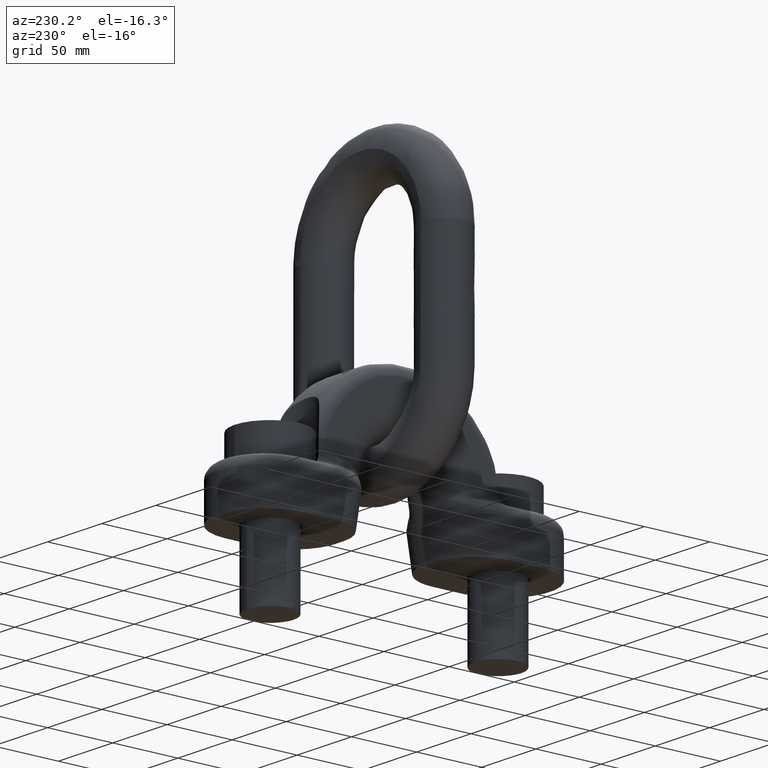
[diagram: clean part render]
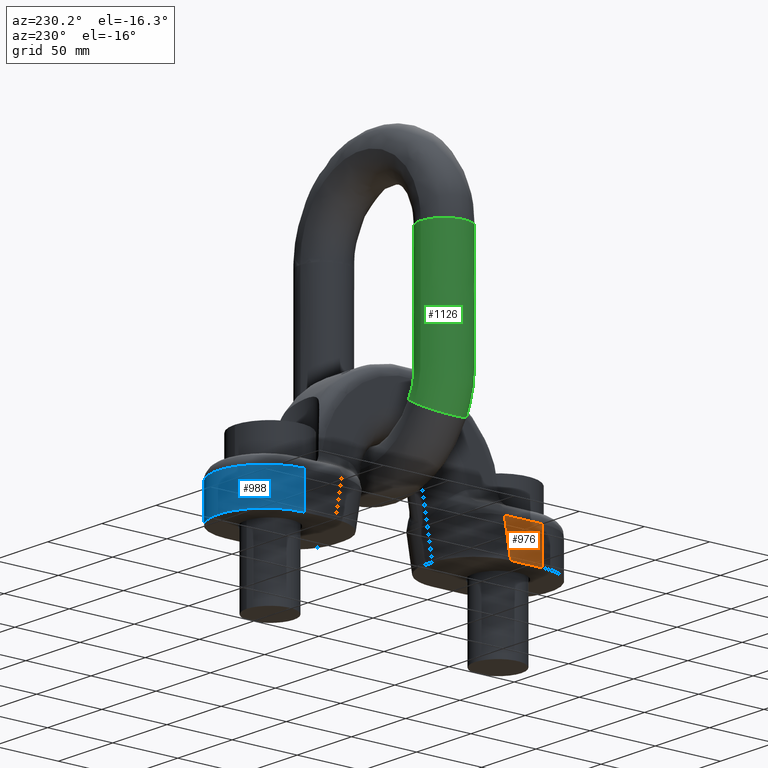
[diagram: same view with three faces highlighted in distinct colors, each labeled with its STEP entity id]
A machine part, auxiliary view with three faces highlighted in distinct colors.
Their STEP definitions:

[orange] entity #976 — the highlighted planar face has unit normal (1, 0, 0).
#744=PLANE('',#3555);
#832=FACE_OUTER_BOUND('',#1531,.T.);
#976=ADVANCED_FACE('',(#832),#744,.F.);
#1183=LINE('',#5118,#1309);
#1184=LINE('',#5121,#1310);
#1185=LINE('',#5123,#1311);
#1186=LINE('',#5125,#1312);
#1309=VECTOR('',#3810,1.);
#1310=VECTOR('',#3811,1.);
#1311=VECTOR('',#3812,1.);
#1312=VECTOR('',#3813,1.);
#1531=EDGE_LOOP('',(#2129,#2130,#2131,#2132));
#2129=ORIENTED_EDGE('',*,*,#3193,.F.);
#2130=ORIENTED_EDGE('',*,*,#3194,.T.);
#2131=ORIENTED_EDGE('',*,*,#3195,.T.);
#2132=ORIENTED_EDGE('',*,*,#3196,.T.);
#2919=VERTEX_POINT('',#5119);
#2920=VERTEX_POINT('',#5120);
#2921=VERTEX_POINT('',#5122);
#2922=VERTEX_POINT('',#5124);
#3193=EDGE_CURVE('',#2919,#2920,#1183,.T.);
#3194=EDGE_CURVE('',#2919,#2921,#1184,.T.);
#3195=EDGE_CURVE('',#2921,#2922,#1185,.T.);
#3196=EDGE_CURVE('',#2922,#2920,#1186,.T.);
#3555=AXIS2_PLACEMENT_3D('',#5126,#3814,#3815);
#3810=DIRECTION('',(0.,0.,-1.));
#3811=DIRECTION('',(-1.51669812107262E-16,1.,-4.04207411878091E-16));
#3812=DIRECTION('',(2.63371864795117E-17,-0.17364817766693,-0.984807753012208));
#3813=DIRECTION('',(1.51669812107262E-16,-1.,0.));
#3814=DIRECTION('',(1.,1.51669812107262E-16,0.));
#3815=DIRECTION('',(-1.52655665885959E-16,1.,0.));
#5118=CARTESIAN_POINT('',(-36.,-91.5,226.));
#5119=CARTESIAN_POINT('',(-36.,-91.5,27.));
#5120=CARTESIAN_POINT('',(-36.,-91.5,0.));
#5121=CARTESIAN_POINT('',(-36.,91.4999999999999,26.9999999999999));
#5122=CARTESIAN_POINT('',(-36.,-62.4322645145148,27.));
#5123=CARTESIAN_POINT('',(-36.,-66.2010419661408,5.62620095640852));
#5124=CARTESIAN_POINT('',(-36.,-67.1930929936434,0.));
#5125=CARTESIAN_POINT('',(-36.,91.5,0.));
#5126=CARTESIAN_POINT('',(-36.,91.5,226.));

[blue] entity #988 — the highlighted cylindrical surface (partial cylindrical patch) has radius 36 mm, axis along (0, 0, -1).
#841=FACE_OUTER_BOUND('',#1546,.T.);
#988=ADVANCED_FACE('',(#841),#1142,.T.);
#1142=CYLINDRICAL_SURFACE('',#3593,36.);
#1181=LINE('',#5114,#1307);
#1195=LINE('',#5159,#1321);
#1307=VECTOR('',#3806,1.);
#1321=VECTOR('',#3848,1.);
#1546=EDGE_LOOP('',(#2194,#2195,#2196,#2197));
#1976=CIRCLE('',#3591,36.);
#1977=CIRCLE('',#3592,36.);
#2194=ORIENTED_EDGE('',*,*,#3191,.F.);
#2195=ORIENTED_EDGE('',*,*,#3244,.T.);
#2196=ORIENTED_EDGE('',*,*,#3213,.T.);
#2197=ORIENTED_EDGE('',*,*,#3245,.T.);
#2917=VERTEX_POINT('',#5113);
#2918=VERTEX_POINT('',#5115);
#2935=VERTEX_POINT('',#5160);
#2936=VERTEX_POINT('',#5161);
#3191=EDGE_CURVE('',#2917,#2918,#1181,.T.);
#3213=EDGE_CURVE('',#2935,#2936,#1195,.T.);
#3244=EDGE_CURVE('',#2917,#2935,#1976,.T.);
#3245=EDGE_CURVE('',#2936,#2918,#1977,.T.);
#3591=AXIS2_PLACEMENT_3D('',#5226,#3907,#3908);
#3592=AXIS2_PLACEMENT_3D('',#5227,#3909,#3910);
#3593=AXIS2_PLACEMENT_3D('',#5228,#3911,#3912);
#3806=DIRECTION('',(0.,0.,-1.));
#3848=DIRECTION('',(0.,0.,-1.));
#3907=DIRECTION('',(0.,4.04207411878091E-16,-1.));
#3908=DIRECTION('',(0.,1.,3.85494105772624E-16));
#3909=DIRECTION('',(0.,0.,1.));
#3910=DIRECTION('',(6.12323399573677E-17,1.,0.));
#3911=DIRECTION('',(0.,0.,-1.));
#3912=DIRECTION('',(-1.,0.,0.));
#5113=CARTESIAN_POINT('',(-36.,91.5,27.));
#5114=CARTESIAN_POINT('',(-36.,91.5,226.));
#5115=CARTESIAN_POINT('',(-36.,91.5,0.));
#5159=CARTESIAN_POINT('',(36.,91.5,226.));
#5160=CARTESIAN_POINT('',(36.,91.5,27.));
#5161=CARTESIAN_POINT('',(36.,91.5,0.));
#5226=CARTESIAN_POINT('',(0.,91.5,27.));
#5227=CARTESIAN_POINT('',(0.,91.5,0.));
#5228=CARTESIAN_POINT('',(0.,91.5,226.));

[green] entity #1126 — the highlighted face is a freeform B-spline surface patch.
#33=(
BOUNDED_CURVE()
B_SPLINE_CURVE(4,(#7147,#7148,#7149,#7150,#7151,#7152,#7153,#7154,#7155,
#7156,#7157,#7158,#7159,#7160),.UNSPECIFIED.,.T.,.F.)
B_SPLINE_CURVE_WITH_KNOTS((2,3,3,3,3,3,2),(-0.25,0.,0.25,0.5,0.75,1.,1.25),
 .UNSPECIFIED.)
CURVE()
GEOMETRIC_REPRESENTATION_ITEM()
RATIONAL_B_SPLINE_CURVE((1.0166117137858,1.0166117137858,0.958470715535492,
1.0166117137858,1.0166117137858,0.958470715535492,1.0166117137858,1.0166117137858,
0.958470715535492,1.0166117137858,1.0166117137858,0.958470715535492,1.0166117137858,
1.0166117137858))
REPRESENTATION_ITEM('')
);
#34=(
BOUNDED_CURVE()
B_SPLINE_CURVE(4,(#7316,#7317,#7318,#7319,#7320,#7321,#7322,#7323,#7324,
#7325,#7326,#7327,#7328,#7329),.UNSPECIFIED.,.T.,.F.)
B_SPLINE_CURVE_WITH_KNOTS((2,3,3,3,3,3,2),(-0.25,0.,0.25,0.5,0.75,1.,1.25),
 .UNSPECIFIED.)
CURVE()
GEOMETRIC_REPRESENTATION_ITEM()
RATIONAL_B_SPLINE_CURVE((1.0166117137858,1.0166117137858,0.958470715535492,
1.0166117137858,1.0166117137858,0.958470715535492,1.0166117137858,1.0166117137858,
0.958470715535492,1.0166117137858,1.0166117137858,0.958470715535492,1.0166117137858,
1.0166117137858))
REPRESENTATION_ITEM('')
);
#818=(
BOUNDED_SURFACE()
B_SPLINE_SURFACE(4,3,((#7653,#7654,#7655,#7656,#7657,#7658,#7659,#7660,
#7661,#7662,#7663,#7664,#7665,#7666),(#7667,#7668,#7669,#7670,#7671,#7672,
#7673,#7674,#7675,#7676,#7677,#7678,#7679,#7680),(#7681,#7682,#7683,#7684,
#7685,#7686,#7687,#7688,#7689,#7690,#7691,#7692,#7693,#7694),(#7695,#7696,
#7697,#7698,#7699,#7700,#7701,#7702,#7703,#7704,#7705,#7706,#7707,#7708),
(#7709,#7710,#7711,#7712,#7713,#7714,#7715,#7716,#7717,#7718,#7719,#7720,
#7721,#7722),(#7723,#7724,#7725,#7726,#7727,#7728,#7729,#7730,#7731,#7732,
#7733,#7734,#7735,#7736),(#7737,#7738,#7739,#7740,#7741,#7742,#7743,#7744,
#7745,#7746,#7747,#7748,#7749,#7750),(#7751,#7752,#7753,#7754,#7755,#7756,
#7757,#7758,#7759,#7760,#7761,#7762,#7763,#7764),(#7765,#7766,#7767,#7768,
#7769,#7770,#7771,#7772,#7773,#7774,#7775,#7776,#7777,#7778),(#7779,#7780,
#7781,#7782,#7783,#7784,#7785,#7786,#7787,#7788,#7789,#7790,#7791,#7792),
(#7793,#7794,#7795,#7796,#7797,#7798,#7799,#7800,#7801,#7802,#7803,#7804,
#7805,#7806),(#7807,#7808,#7809,#7810,#7811,#7812,#7813,#7814,#7815,#7816,
#7817,#7818,#7819,#7820),(#7821,#7822,#7823,#7824,#7825,#7826,#7827,#7828,
#7829,#7830,#7831,#7832,#7833,#7834),(#7835,#7836,#7837,#7838,#7839,#7840,
#7841,#7842,#7843,#7844,#7845,#7846,#7847,#7848)),.UNSPECIFIED.,.T.,.F.,
 .F.)
B_SPLINE_SURFACE_WITH_KNOTS((2,3,3,3,3,3,2),(4,1,1,1,1,1,1,1,1,1,1,4),(-0.25,
0.,0.25,0.5,0.75,1.,1.25),(0.,0.0294579994630743,0.0598312635837769,0.121094131718347,
0.501952614251677,0.666044283327456,0.693362459308782,0.703037312407282,
0.715116832343048,0.765492315786816,0.924036142002628,1.),.UNSPECIFIED.)
GEOMETRIC_REPRESENTATION_ITEM()
RATIONAL_B_SPLINE_SURFACE(((1.0166117137858,1.0166117137858,1.0166117137858,
1.0166117137858,1.01661171378581,1.0166117137858,1.0166117137858,1.0166117137858,
1.0166117137858,1.0166117137858,1.0166117137858,1.0166117137858,1.0166117137858,
1.0166117137858),(1.0166117137858,1.0166117137858,1.0166117137858,1.0166117137858,
1.01661171378581,1.0166117137858,1.0166117137858,1.0166117137858,1.0166117137858,
1.0166117137858,1.0166117137858,1.0166117137858,1.0166117137858,1.0166117137858),
(0.958470715535492,0.958470715535492,0.958470715535492,0.958470715535493,
0.95847071553549,0.958470715535494,0.958470715535492,0.958470715535492,
0.958470715535493,0.958470715535491,0.958470715535494,0.958470715535492,
0.958470715535491,0.958470715535492),(1.0166117137858,1.0166117137858,1.0166117137858,
1.0166117137858,1.01661171378581,1.0166117137858,1.0166117137858,1.0166117137858,
1.0166117137858,1.0166117137858,1.0166117137858,1.0166117137858,1.0166117137858,
1.0166117137858),(1.0166117137858,1.0166117137858,1.0166117137858,1.0166117137858,
1.01661171378581,1.0166117137858,1.0166117137858,1.0166117137858,1.0166117137858,
1.0166117137858,1.0166117137858,1.0166117137858,1.0166117137858,1.0166117137858),
(0.958470715535492,0.958470715535492,0.958470715535492,0.958470715535493,
0.95847071553549,0.958470715535494,0.958470715535492,0.958470715535492,
0.958470715535493,0.958470715535491,0.958470715535494,0.958470715535492,
0.958470715535491,0.958470715535492),(1.0166117137858,1.0166117137858,1.0166117137858,
1.0166117137858,1.01661171378581,1.0166117137858,1.0166117137858,1.0166117137858,
1.0166117137858,1.0166117137858,1.0166117137858,1.0166117137858,1.0166117137858,
1.0166117137858),(1.0166117137858,1.0166117137858,1.0166117137858,1.0166117137858,
1.01661171378581,1.0166117137858,1.0166117137858,1.0166117137858,1.0166117137858,
1.0166117137858,1.0166117137858,1.0166117137858,1.0166117137858,1.0166117137858),
(0.958470715535492,0.958470715535492,0.958470715535492,0.958470715535493,
0.95847071553549,0.958470715535494,0.958470715535492,0.958470715535492,
0.958470715535493,0.958470715535491,0.958470715535494,0.958470715535492,
0.958470715535491,0.958470715535492),(1.0166117137858,1.0166117137858,1.0166117137858,
1.0166117137858,1.01661171378581,1.0166117137858,1.0166117137858,1.0166117137858,
1.0166117137858,1.0166117137858,1.0166117137858,1.0166117137858,1.0166117137858,
1.0166117137858),(1.0166117137858,1.0166117137858,1.0166117137858,1.0166117137858,
1.01661171378581,1.0166117137858,1.0166117137858,1.0166117137858,1.0166117137858,
1.0166117137858,1.0166117137858,1.0166117137858,1.0166117137858,1.0166117137858),
(0.958470715535492,0.958470715535492,0.958470715535492,0.958470715535493,
0.95847071553549,0.958470715535494,0.958470715535492,0.958470715535492,
0.958470715535493,0.958470715535491,0.958470715535494,0.958470715535492,
0.958470715535491,0.958470715535492),(1.0166117137858,1.0166117137858,1.0166117137858,
1.0166117137858,1.01661171378581,1.0166117137858,1.0166117137858,1.0166117137858,
1.0166117137858,1.0166117137858,1.0166117137858,1.0166117137858,1.0166117137858,
1.0166117137858),(1.0166117137858,1.0166117137858,1.0166117137858,1.0166117137858,
1.01661171378581,1.0166117137858,1.0166117137858,1.0166117137858,1.0166117137858,
1.0166117137858,1.0166117137858,1.0166117137858,1.0166117137858,1.0166117137858)))
REPRESENTATION_ITEM('')
SURFACE()
);
#1126=ADVANCED_FACE('',(#1508,#1509),#818,.F.);
#1508=FACE_BOUND('',#1697,.T.);
#1509=FACE_BOUND('',#1698,.T.);
#1697=EDGE_LOOP('',(#2803));
#1698=EDGE_LOOP('',(#2804));
#2803=ORIENTED_EDGE('',*,*,#3481,.F.);
#2804=ORIENTED_EDGE('',*,*,#3480,.F.);
#3076=VERTEX_POINT('',#7161);
#3077=VERTEX_POINT('',#7330);
#3480=EDGE_CURVE('',#3076,#3076,#33,.T.);
#3481=EDGE_CURVE('',#3077,#3077,#34,.T.);
#7147=CARTESIAN_POINT('',(-54.9645875436099,18.,75.1060692174956));
#7148=CARTESIAN_POINT('',(-43.6561460094053,18.,80.948512322601));
#7149=CARTESIAN_POINT('',(-36.1449257730834,14.8180194846606,84.8291422704054));
#7150=CARTESIAN_POINT('',(-33.3178153895322,6.36396103067893,86.2897530466816));
#7151=CARTESIAN_POINT('',(-33.3178153895322,-6.36396103067893,86.2897530466816));
#7152=CARTESIAN_POINT('',(-36.1449257730834,-14.8180194846606,84.8291422704054));
#7153=CARTESIAN_POINT('',(-43.6561460094053,-18.,80.948512322601));
#7154=CARTESIAN_POINT('',(-54.9645875436099,-18.,75.1060692174956));
#7155=CARTESIAN_POINT('',(-62.475807779932,-14.8180194846606,71.2254392696913));
#7156=CARTESIAN_POINT('',(-65.3029181634831,-6.36396103067893,69.7648284934149));
#7157=CARTESIAN_POINT('',(-65.3029181634831,6.36396103067893,69.7648284934149));
#7158=CARTESIAN_POINT('',(-62.475807779932,14.8180194846606,71.2254392696913));
#7159=CARTESIAN_POINT('',(-54.9645875436099,18.,75.1060692174956));
#7160=CARTESIAN_POINT('',(-43.6561460094053,18.,80.948512322601));
#7161=CARTESIAN_POINT('',(-49.3103667765076,18.,78.0272907700483));
#7316=CARTESIAN_POINT('',(-49.1360801568512,18.,188.499461932894));
#7317=CARTESIAN_POINT('',(-61.8640128871942,18.,188.500620762991));
#7318=CARTESIAN_POINT('',(-70.3180784276605,14.8180194846605,188.501390473658));
#7319=CARTESIAN_POINT('',(-73.5000616102463,6.36396103067894,188.501680181182));
#7320=CARTESIAN_POINT('',(-73.5000616102463,-6.36396103067892,188.501680181182));
#7321=CARTESIAN_POINT('',(-70.3180784276605,-14.8180194846605,188.501390473658));
#7322=CARTESIAN_POINT('',(-61.8640128871942,-18.,188.500620762991));
#7323=CARTESIAN_POINT('',(-49.1360801568512,-18.,188.499461932894));
#7324=CARTESIAN_POINT('',(-40.6820146163849,-14.8180194846606,188.498692222227));
#7325=CARTESIAN_POINT('',(-37.5000314337991,-6.36396103067894,188.498402514703));
#7326=CARTESIAN_POINT('',(-37.5000314337991,6.36396103067892,188.498402514703));
#7327=CARTESIAN_POINT('',(-40.6820146163849,14.8180194846605,188.498692222227));
#7328=CARTESIAN_POINT('',(-49.1360801568512,18.,188.499461932894));
#7329=CARTESIAN_POINT('',(-61.8640128871942,18.,188.500620762991));
#7330=CARTESIAN_POINT('',(-55.5000465220227,18.,188.500041347943));
#7653=CARTESIAN_POINT('',(-49.1360801568512,18.,188.499461932894));
#7654=CARTESIAN_POINT('',(-49.1505839658783,18.,187.158535537742));
#7655=CARTESIAN_POINT('',(-49.130391686812,18.,184.371743747516));
#7656=CARTESIAN_POINT('',(-49.137635986376,18.0000000000001,179.029208807226));
#7657=CARTESIAN_POINT('',(-49.1349362263087,17.9999999999999,158.102515115602));
#7658=CARTESIAN_POINT('',(-49.1363532864231,18.,133.937383217414));
#7659=CARTESIAN_POINT('',(-49.136147826044,18.,111.966562273466));
#7660=CARTESIAN_POINT('',(-49.1355786584066,18.,105.300958317876));
#7661=CARTESIAN_POINT('',(-49.1373370035106,18.,103.539304194526));
#7662=CARTESIAN_POINT('',(-49.1223034887103,18.,101.427638698207));
#7663=CARTESIAN_POINT('',(-48.7018592065755,18.0000000000001,95.0569435426681));
#7664=CARTESIAN_POINT('',(-46.8281400966228,18.,87.7869903322047));
#7665=CARTESIAN_POINT('',(-44.4880355700716,18.,82.5630369933892));
#7666=CARTESIAN_POINT('',(-43.6561460094053,18.,80.948512322601));
#7667=CARTESIAN_POINT('',(-61.8640128871942,18.,188.500620762991));
#7668=CARTESIAN_POINT('',(-61.8822736810082,18.,186.975728769163));
#7669=CARTESIAN_POINT('',(-61.8568509079992,18.,184.443822097385));
#7670=CARTESIAN_POINT('',(-61.8659717300133,18.0000000000001,179.005321269819));
#7671=CARTESIAN_POINT('',(-61.8625726393442,17.9999999999999,158.127013183372));
#7672=CARTESIAN_POINT('',(-61.8643567667078,18.0000000000001,133.916244392247));
#7673=CARTESIAN_POINT('',(-61.8640980850328,18.,111.977902811347));
#7674=CARTESIAN_POINT('',(-61.8633814834244,18.,105.288693486067));
#7675=CARTESIAN_POINT('',(-61.865595300315,18.,103.574641358263));
#7676=CARTESIAN_POINT('',(-61.8466675887355,18.,100.884676453241));
#7677=CARTESIAN_POINT('',(-61.3173137940229,18.,92.8737482713205));
#7678=CARTESIAN_POINT('',(-58.9582370667977,18.,83.7166461216596));
#7679=CARTESIAN_POINT('',(-56.0119650783563,18.,77.1388554826562));
#7680=CARTESIAN_POINT('',(-54.9645875436099,18.,75.1060692174956));
#7681=CARTESIAN_POINT('',(-70.3180784276605,14.8180194846605,188.501390473658));
#7682=CARTESIAN_POINT('',(-70.3388346617235,14.8180194846605,186.854306034179));
#7683=CARTESIAN_POINT('',(-70.3099377237,14.8180194846606,184.491697514921));
#7684=CARTESIAN_POINT('',(-70.3203049573751,14.8180194846605,178.989454843501));
#7685=CARTESIAN_POINT('',(-70.3164413618361,14.8180194846606,158.143285132237));
#7686=CARTESIAN_POINT('',(-70.318469300245,14.8180194846605,133.902203697878));
#7687=CARTESIAN_POINT('',(-70.3181752682631,14.8180194846606,111.985435350412));
#7688=CARTESIAN_POINT('',(-70.3173607390121,14.8180194846606,105.280547018439));
#7689=CARTESIAN_POINT('',(-70.3198770864401,14.8180194846605,103.598112781673));
#7690=CARTESIAN_POINT('',(-70.2983627965458,14.8180194846606,100.524033566278));
#7691=CARTESIAN_POINT('',(-69.696669826507,14.8180194846605,91.4236403627828));
#7692=CARTESIAN_POINT('',(-67.0152119872888,14.8180194846606,81.0130682934886));
#7693=CARTESIAN_POINT('',(-63.6663153495906,14.8180194846606,73.5360405584539));
#7694=CARTESIAN_POINT('',(-62.475807779932,14.8180194846606,71.2254392696913));
#7695=CARTESIAN_POINT('',(-73.5000616102463,6.36396103067894,188.501680181182));
#7696=CARTESIAN_POINT('',(-73.5217570905059,6.36396103067894,186.808604342034));
#7697=CARTESIAN_POINT('',(-73.4915525289966,6.36396103067893,184.509717102388));
#7698=CARTESIAN_POINT('',(-73.5023888932848,6.36396103067894,178.98348295915));
#7699=CARTESIAN_POINT('',(-73.4983504650944,6.36396103067895,158.149409649179));
#7700=CARTESIAN_POINT('',(-73.5004701703164,6.36396103067895,133.896918991587));
#7701=CARTESIAN_POINT('',(-73.5001628330102,6.36396103067896,111.988270484882));
#7702=CARTESIAN_POINT('',(-73.4993114452666,6.36396103067894,105.277480810486));
#7703=CARTESIAN_POINT('',(-73.5019416606412,6.36396103067894,103.606947072607));
#7704=CARTESIAN_POINT('',(-73.4794538215521,6.36396103067893,100.388293005037));
#7705=CARTESIAN_POINT('',(-72.850533473369,6.36396103067892,90.8778415449461));
#7706=CARTESIAN_POINT('',(-70.0477362298325,6.36396103067893,79.9954822408522));
#7707=CARTESIAN_POINT('',(-66.5472977266618,6.36396103067893,72.1799951807705));
#7708=CARTESIAN_POINT('',(-65.3029181634831,6.36396103067893,69.7648284934149));
#7709=CARTESIAN_POINT('',(-73.5000616102463,-6.36396103067892,188.501680181182));
#7710=CARTESIAN_POINT('',(-73.5217570905059,-6.36396103067892,186.808604342034));
#7711=CARTESIAN_POINT('',(-73.4915525289966,-6.36396103067892,184.509717102388));
#7712=CARTESIAN_POINT('',(-73.5023888932849,-6.36396103067892,178.98348295915));
#7713=CARTESIAN_POINT('',(-73.4983504650943,-6.36396103067892,158.149409649179));
#7714=CARTESIAN_POINT('',(-73.5004701703167,-6.36396103067888,133.896918991587));
#7715=CARTESIAN_POINT('',(-73.5001628330101,-6.36396103067892,111.988270484882));
#7716=CARTESIAN_POINT('',(-73.4993114452667,-6.3639610306789,105.277480810486));
#7717=CARTESIAN_POINT('',(-73.5019416606412,-6.36396103067892,103.606947072607));
#7718=CARTESIAN_POINT('',(-73.4794538215521,-6.36396103067893,100.388293005037));
#7719=CARTESIAN_POINT('',(-72.850533473369,-6.36396103067892,90.8778415449462));
#7720=CARTESIAN_POINT('',(-70.0477362298325,-6.36396103067893,79.9954822408522));
#7721=CARTESIAN_POINT('',(-66.5472977266618,-6.36396103067893,72.1799951807705));
#7722=CARTESIAN_POINT('',(-65.3029181634831,-6.36396103067893,69.7648284934149));
#7723=CARTESIAN_POINT('',(-70.3180784276605,-14.8180194846605,188.501390473658));
#7724=CARTESIAN_POINT('',(-70.3388346617235,-14.8180194846605,186.854306034179));
#7725=CARTESIAN_POINT('',(-70.3099377237,-14.8180194846606,184.491697514921));
#7726=CARTESIAN_POINT('',(-70.3203049573751,-14.8180194846605,178.989454843501));
#7727=CARTESIAN_POINT('',(-70.3164413618362,-14.8180194846606,158.143285132237));
#7728=CARTESIAN_POINT('',(-70.3184693002449,-14.8180194846604,133.902203697878));
#7729=CARTESIAN_POINT('',(-70.3181752682632,-14.8180194846605,111.985435350412));
#7730=CARTESIAN_POINT('',(-70.3173607390122,-14.8180194846605,105.280547018439));
#7731=CARTESIAN_POINT('',(-70.3198770864402,-14.8180194846605,103.598112781673));
#7732=CARTESIAN_POINT('',(-70.2983627965458,-14.8180194846605,100.524033566279));
#7733=CARTESIAN_POINT('',(-69.6966698265072,-14.8180194846605,91.4236403627828));
#7734=CARTESIAN_POINT('',(-67.0152119872888,-14.8180194846606,81.0130682934886));
#7735=CARTESIAN_POINT('',(-63.6663153495906,-14.8180194846606,73.5360405584539));
#7736=CARTESIAN_POINT('',(-62.475807779932,-14.8180194846606,71.2254392696913));
#7737=CARTESIAN_POINT('',(-61.8640128871942,-18.,188.500620762991));
#7738=CARTESIAN_POINT('',(-61.8822736810082,-18.,186.975728769163));
#7739=CARTESIAN_POINT('',(-61.8568509079992,-18.,184.443822097385));
#7740=CARTESIAN_POINT('',(-61.8659717300133,-18.0000000000001,179.005321269819));
#7741=CARTESIAN_POINT('',(-61.8625726393442,-17.9999999999999,158.127013183372));
#7742=CARTESIAN_POINT('',(-61.8643567667079,-18.,133.916244392247));
#7743=CARTESIAN_POINT('',(-61.8640980850328,-18.,111.977902811347));
#7744=CARTESIAN_POINT('',(-61.8633814834245,-18.,105.288693486067));
#7745=CARTESIAN_POINT('',(-61.865595300315,-18.,103.574641358263));
#7746=CARTESIAN_POINT('',(-61.8466675887355,-18.,100.884676453241));
#7747=CARTESIAN_POINT('',(-61.3173137940229,-18.0000000000001,92.8737482713205));
#7748=CARTESIAN_POINT('',(-58.9582370667977,-18.,83.7166461216596));
#7749=CARTESIAN_POINT('',(-56.0119650783563,-18.,77.1388554826562));
#7750=CARTESIAN_POINT('',(-54.9645875436099,-18.,75.1060692174956));
#7751=CARTESIAN_POINT('',(-49.1360801568512,-18.,188.499461932894));
#7752=CARTESIAN_POINT('',(-49.1505839658783,-18.,187.158535537742));
#7753=CARTESIAN_POINT('',(-49.130391686812,-18.,184.371743747516));
#7754=CARTESIAN_POINT('',(-49.137635986376,-18.0000000000001,179.029208807226));
#7755=CARTESIAN_POINT('',(-49.1349362263087,-17.9999999999999,158.102515115602));
#7756=CARTESIAN_POINT('',(-49.1363532864232,-18.0000000000001,133.937383217414));
#7757=CARTESIAN_POINT('',(-49.136147826044,-18.,111.966562273466));
#7758=CARTESIAN_POINT('',(-49.1355786584066,-18.,105.300958317876));
#7759=CARTESIAN_POINT('',(-49.1373370035106,-18.,103.539304194526));
#7760=CARTESIAN_POINT('',(-49.1223034887103,-18.,101.427638698207));
#7761=CARTESIAN_POINT('',(-48.7018592065754,-18.,95.056943542668));
#7762=CARTESIAN_POINT('',(-46.8281400966228,-18.,87.7869903322047));
#7763=CARTESIAN_POINT('',(-44.4880355700716,-18.,82.5630369933892));
#7764=CARTESIAN_POINT('',(-43.6561460094053,-18.,80.948512322601));
#7765=CARTESIAN_POINT('',(-40.6820146163849,-14.8180194846606,188.498692222227));
#7766=CARTESIAN_POINT('',(-40.6940229851631,-14.8180194846606,187.279958272726));
#7767=CARTESIAN_POINT('',(-40.6773048711114,-14.8180194846606,184.32386832998));
#7768=CARTESIAN_POINT('',(-40.6833027590138,-14.8180194846605,179.045075233544));
#7769=CARTESIAN_POINT('',(-40.6810675038172,-14.8180194846606,158.086243166738));
#7770=CARTESIAN_POINT('',(-40.682240752886,-14.8180194846605,133.951423911782));
#7771=CARTESIAN_POINT('',(-40.6820706428136,-14.8180194846606,111.959029734401));
#7772=CARTESIAN_POINT('',(-40.6815994028191,-14.8180194846606,105.309104785504));
#7773=CARTESIAN_POINT('',(-40.6830552173854,-14.8180194846605,103.515832771116));
#7774=CARTESIAN_POINT('',(-40.6706082809003,-14.8180194846606,101.78828158517));
#7775=CARTESIAN_POINT('',(-40.3225031740909,-14.8180194846605,96.5070514512055));
#7776=CARTESIAN_POINT('',(-38.7711651761318,-14.8180194846606,90.4905681603758));
#7777=CARTESIAN_POINT('',(-36.8336852988374,-14.8180194846606,86.1658519175917));
#7778=CARTESIAN_POINT('',(-36.1449257730834,-14.8180194846606,84.8291422704054));
#7779=CARTESIAN_POINT('',(-37.5000314337991,-6.36396103067894,188.498402514703));
#7780=CARTESIAN_POINT('',(-37.5111005563806,-6.36396103067894,187.32565996487));
#7781=CARTESIAN_POINT('',(-37.4956900658146,-6.36396103067893,184.305848742513));
#7782=CARTESIAN_POINT('',(-37.5012188231045,-6.36396103067895,179.051047117896));
#7783=CARTESIAN_POINT('',(-37.4991584005585,-6.36396103067894,158.080118649795));
#7784=CARTESIAN_POINT('',(-37.5002398828144,-6.36396103067896,133.956708618075));
#7785=CARTESIAN_POINT('',(-37.5000830780666,-6.36396103067896,111.956194599931));
#7786=CARTESIAN_POINT('',(-37.4996486965645,-6.36396103067894,105.312170993456));
#7787=CARTESIAN_POINT('',(-37.5009906431844,-6.36396103067894,103.506998480181));
#7788=CARTESIAN_POINT('',(-37.4895172558939,-6.36396103067893,101.924022146411));
#7789=CARTESIAN_POINT('',(-37.1686395272291,-6.36396103067894,97.0528502690426));
#7790=CARTESIAN_POINT('',(-35.738640933588,-6.36396103067893,91.5081542130119));
#7791=CARTESIAN_POINT('',(-33.9527029217662,-6.36396103067893,87.5218972952748));
#7792=CARTESIAN_POINT('',(-33.3178153895322,-6.36396103067893,86.2897530466816));
#7793=CARTESIAN_POINT('',(-37.5000314337991,6.36396103067892,188.498402514703));
#7794=CARTESIAN_POINT('',(-37.5111005563806,6.36396103067892,187.32565996487));
#7795=CARTESIAN_POINT('',(-37.4956900658146,6.36396103067891,184.305848742513));
#7796=CARTESIAN_POINT('',(-37.5012188231044,6.36396103067892,179.051047117896));
#7797=CARTESIAN_POINT('',(-37.4991584005586,6.36396103067892,158.080118649795));
#7798=CARTESIAN_POINT('',(-37.5002398828144,6.36396103067888,133.956708618075));
#7799=CARTESIAN_POINT('',(-37.5000830780666,6.36396103067891,111.956194599931));
#7800=CARTESIAN_POINT('',(-37.4996486965645,6.3639610306789,105.312170993456));
#7801=CARTESIAN_POINT('',(-37.5009906431843,6.36396103067892,103.506998480181));
#7802=CARTESIAN_POINT('',(-37.4895172558939,6.36396103067893,101.924022146411));
#7803=CARTESIAN_POINT('',(-37.1686395272291,6.36396103067892,97.0528502690427));
#7804=CARTESIAN_POINT('',(-35.738640933588,6.36396103067893,91.5081542130119));
#7805=CARTESIAN_POINT('',(-33.9527029217662,6.36396103067893,87.5218972952747));
#7806=CARTESIAN_POINT('',(-33.3178153895322,6.36396103067893,86.2897530466816));
#7807=CARTESIAN_POINT('',(-40.6820146163849,14.8180194846605,188.498692222227));
#7808=CARTESIAN_POINT('',(-40.6940229851631,14.8180194846605,187.279958272726));
#7809=CARTESIAN_POINT('',(-40.6773048711115,14.8180194846606,184.32386832998));
#7810=CARTESIAN_POINT('',(-40.6833027590137,14.8180194846605,179.045075233544));
#7811=CARTESIAN_POINT('',(-40.6810675038173,14.8180194846606,158.086243166738));
#7812=CARTESIAN_POINT('',(-40.6822407528858,14.8180194846604,133.951423911782));
#7813=CARTESIAN_POINT('',(-40.6820706428136,14.8180194846605,111.959029734401));
#7814=CARTESIAN_POINT('',(-40.6815994028191,14.8180194846605,105.309104785504));
#7815=CARTESIAN_POINT('',(-40.6830552173853,14.8180194846605,103.515832771116));
#7816=CARTESIAN_POINT('',(-40.6706082809003,14.8180194846605,101.78828158517));
#7817=CARTESIAN_POINT('',(-40.3225031740909,14.8180194846605,96.5070514512056));
#7818=CARTESIAN_POINT('',(-38.7711651761318,14.8180194846606,90.4905681603758));
#7819=CARTESIAN_POINT('',(-36.8336852988374,14.8180194846606,86.1658519175916));
#7820=CARTESIAN_POINT('',(-36.1449257730834,14.8180194846606,84.8291422704054));
#7821=CARTESIAN_POINT('',(-49.1360801568512,18.,188.499461932894));
#7822=CARTESIAN_POINT('',(-49.1505839658783,18.,187.158535537742));
#7823=CARTESIAN_POINT('',(-49.130391686812,18.,184.371743747516));
#7824=CARTESIAN_POINT('',(-49.137635986376,18.0000000000001,179.029208807226));
#7825=CARTESIAN_POINT('',(-49.1349362263087,17.9999999999999,158.102515115602));
#7826=CARTESIAN_POINT('',(-49.1363532864231,18.,133.937383217414));
#7827=CARTESIAN_POINT('',(-49.136147826044,18.,111.966562273466));
#7828=CARTESIAN_POINT('',(-49.1355786584066,18.,105.300958317876));
#7829=CARTESIAN_POINT('',(-49.1373370035106,18.,103.539304194526));
#7830=CARTESIAN_POINT('',(-49.1223034887103,18.,101.427638698207));
#7831=CARTESIAN_POINT('',(-48.7018592065755,18.0000000000001,95.0569435426681));
#7832=CARTESIAN_POINT('',(-46.8281400966228,18.,87.7869903322047));
#7833=CARTESIAN_POINT('',(-44.4880355700716,18.,82.5630369933892));
#7834=CARTESIAN_POINT('',(-43.6561460094053,18.,80.948512322601));
#7835=CARTESIAN_POINT('',(-61.8640128871942,18.,188.500620762991));
#7836=CARTESIAN_POINT('',(-61.8822736810082,18.,186.975728769163));
#7837=CARTESIAN_POINT('',(-61.8568509079992,18.,184.443822097385));
#7838=CARTESIAN_POINT('',(-61.8659717300133,18.0000000000001,179.005321269819));
#7839=CARTESIAN_POINT('',(-61.8625726393442,17.9999999999999,158.127013183372));
#7840=CARTESIAN_POINT('',(-61.8643567667078,18.0000000000001,133.916244392247));
#7841=CARTESIAN_POINT('',(-61.8640980850328,18.,111.977902811347));
#7842=CARTESIAN_POINT('',(-61.8633814834244,18.,105.288693486067));
#7843=CARTESIAN_POINT('',(-61.865595300315,18.,103.574641358263));
#7844=CARTESIAN_POINT('',(-61.8466675887355,18.,100.884676453241));
#7845=CARTESIAN_POINT('',(-61.3173137940229,18.,92.8737482713205));
#7846=CARTESIAN_POINT('',(-58.9582370667977,18.,83.7166461216596));
#7847=CARTESIAN_POINT('',(-56.0119650783563,18.,77.1388554826562));
#7848=CARTESIAN_POINT('',(-54.9645875436099,18.,75.1060692174956));